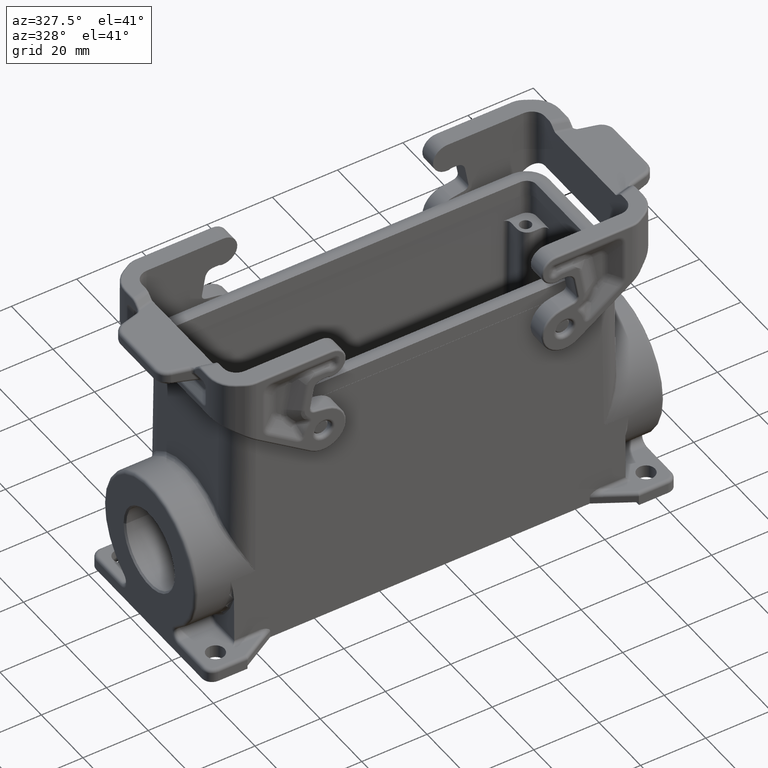
[diagram: clean part render]
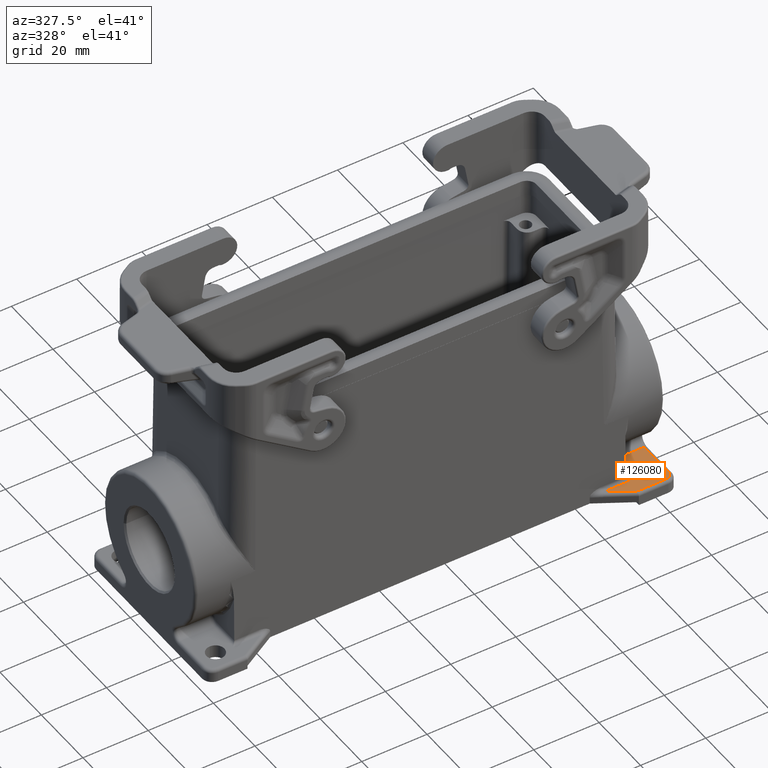
[diagram: same view with one face highlighted and labeled with its STEP entity id]
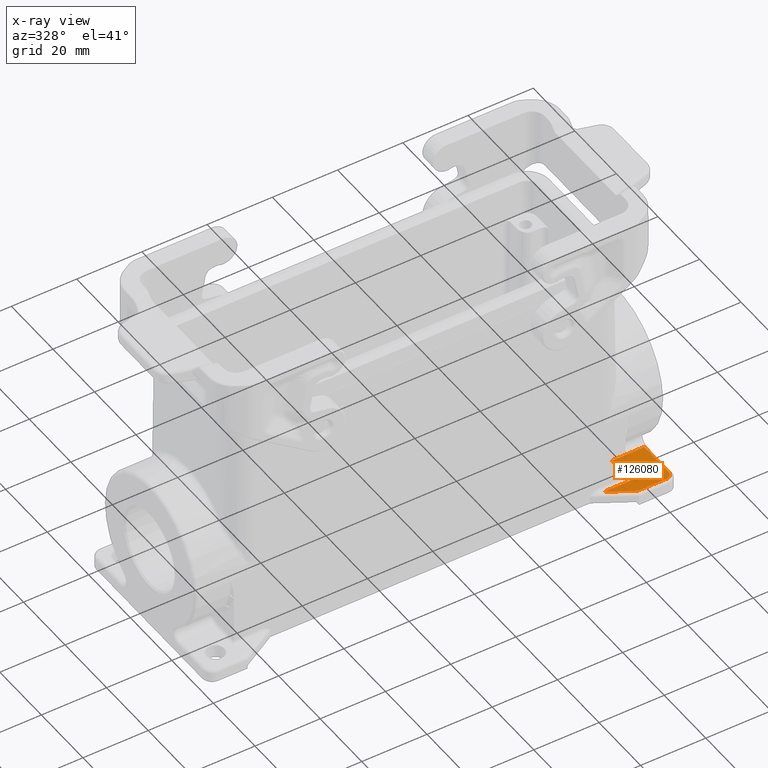
[diagram: x-ray of the same camera — body ghosted, the highlighted face saturated]
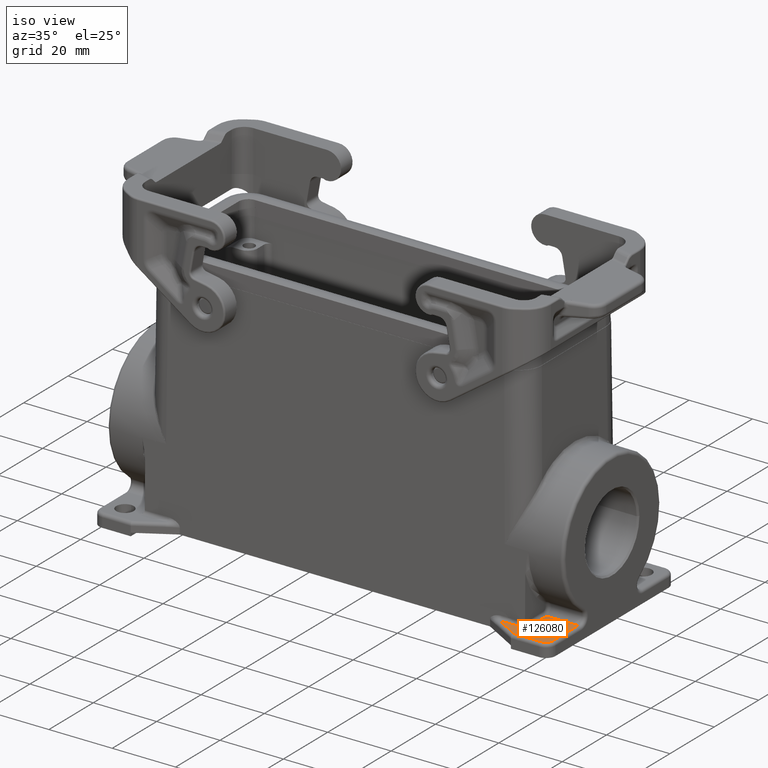
[diagram: same view with one face highlighted and labeled with its STEP entity id]
A machine part, auxiliary view. The second image highlights one B-rep face of the part: STEP entity #126080.
The next image is the same camera in x-ray: the body ghosted, the highlighted face saturated — about 0% of this face is hidden behind the body in this view.
A second angle (iso view) of the same face is appended — the face is thin or edge-on in the first view.
In plain terms, the highlighted planar face has unit normal (0, 0, -1).
Its self-contained STEP definition (entity closure, byte-faithful):
#32250=CARTESIAN_POINT('',(-8.68142200000004,67.70508,2.99999999999998))
;
#32260=VERTEX_POINT('',#32250);
#32290=CARTESIAN_POINT('',(-8.68142200000004,65.70508,2.99999999999998))
;
#32300=DIRECTION('',(0.,0.,1.));
#32310=DIRECTION('',(0.,-1.,1.22464679914735E-16));
#32320=AXIS2_PLACEMENT_3D('',#32290,#32300,#32310);
#32330=CIRCLE('',#32320,2.);
#32340=CARTESIAN_POINT('',(-10.681422,65.70508,2.99999999999998));
#32350=VERTEX_POINT('',#32340);
#32360=EDGE_CURVE('',#32260,#32350,#32330,.T.);
#42430=CARTESIAN_POINT('',(-10.681422,54.0852294588785,2.99999999999998)
);
#42440=VERTEX_POINT('',#42430);
#42490=CARTESIAN_POINT('',(-11.431422,54.0852294588785,2.99999999999998)
);
#42500=DIRECTION('',(-1.,0.,0.));
#42510=VECTOR('',#42500,1.);
#42520=LINE('',#42490,#42510);
#42530=CARTESIAN_POINT('',(-0.68142200000004,54.0852294588785,
2.99999999999998));
#42540=VERTEX_POINT('',#42530);
#42550=EDGE_CURVE('',#42540,#42440,#42520,.T.);
#124430=CARTESIAN_POINT('',(-0.68142200000004,63.3203622576342,
2.99999999999998));
#124440=VERTEX_POINT('',#124430);
#124470=CARTESIAN_POINT('',(120.637156,63.3203622576342,2.99999999999998
));
#124480=DIRECTION('',(1.,0.,0.));
#124490=VECTOR('',#124480,1.);
#124500=LINE('',#124470,#124490);
#124510=CARTESIAN_POINT('',(7.64518271419509,63.3203622576342,
2.99999999999998));
#124520=VERTEX_POINT('',#124510);
#124530=EDGE_CURVE('',#124440,#124520,#124500,.T.);
#125400=CARTESIAN_POINT('',(-0.68142200000004,4.89858719658938E-16,
2.99999999999998));
#125410=DIRECTION('',(0.,1.,0.));
#125420=VECTOR('',#125410,1.);
#125430=LINE('',#125400,#125420);
#125440=EDGE_CURVE('',#42540,#124440,#125430,.T.);
#125580=CARTESIAN_POINT('',(23.3685021747942,40.20508,2.99999999999998))
;
#125590=DIRECTION('',(0.,0.,-1.));
#125600=DIRECTION('',(1.,0.,0.));
#125610=AXIS2_PLACEMENT_3D('',#125580,#125590,#125600);
#125620=PLANE('',#125610);
#125630=CARTESIAN_POINT('',(-5.68142200000004,62.70508,2.99999999999998)
);
#125640=DIRECTION('',(0.,0.,-1.));
#125650=DIRECTION('',(0.,1.,0.));
#125660=AXIS2_PLACEMENT_3D('',#125630,#125640,#125650);
#125670=CIRCLE('',#125660,2.74999999999998);
#125680=CARTESIAN_POINT('',(-2.93142200000006,62.70508,2.99999999999998)
);
#125690=VERTEX_POINT('',#125680);
#125700=CARTESIAN_POINT('',(-8.43142200000002,62.70508,2.99999999999998)
);
#125710=VERTEX_POINT('',#125700);
#125720=EDGE_CURVE('',#125690,#125710,#125670,.T.);
#125730=ORIENTED_EDGE('',*,*,#125720,.T.);
#125740=CARTESIAN_POINT('',(-5.68142200000006,65.45508,2.99999999999998)
);
#125750=VERTEX_POINT('',#125740);
#125760=EDGE_CURVE('',#125750,#125690,#125670,.T.);
#125770=ORIENTED_EDGE('',*,*,#125760,.T.);
#125780=EDGE_CURVE('',#125710,#125750,#125670,.T.);
#125790=ORIENTED_EDGE('',*,*,#125780,.T.);
#125800=EDGE_LOOP('',(#125790,#125770,#125730));
#125810=FACE_BOUND('',#125800,.T.);
#125820=CARTESIAN_POINT('',(120.637156,67.70508,2.99999999999998));
#125830=DIRECTION('',(-1.,0.,0.));
#125840=VECTOR('',#125830,1.);
#125850=LINE('',#125820,#125840);
#125860=CARTESIAN_POINT('',(0.0506288075688275,67.70508,2.99999999999998
));
#125870=VERTEX_POINT('',#125860);
#125880=EDGE_CURVE('',#125870,#32260,#125850,.T.);
#125890=ORIENTED_EDGE('',*,*,#125880,.T.);
#125900=CARTESIAN_POINT('',(120.637156,-1.91558393519221,
2.99999999999998));
#125910=DIRECTION('',(-0.866025403784439,0.5,-5.72118872610981E-18));
#125920=VECTOR('',#125910,1.);
#125930=LINE('',#125900,#125920);
#125940=EDGE_CURVE('',#124520,#125870,#125930,.T.);
#125950=ORIENTED_EDGE('',*,*,#125940,.T.);
#125960=ORIENTED_EDGE('',*,*,#124530,.T.);
#125970=ORIENTED_EDGE('',*,*,#125440,.T.);
#125980=ORIENTED_EDGE('',*,*,#42550,.F.);
#125990=CARTESIAN_POINT('',(-10.681422,2.44929359829467E-16,
2.99999999999998));
#126000=DIRECTION('',(0.,1.,0.));
#126010=VECTOR('',#126000,1.);
#126020=LINE('',#125990,#126010);
#126030=EDGE_CURVE('',#42440,#32350,#126020,.T.);
#126040=ORIENTED_EDGE('',*,*,#126030,.F.);
#126050=ORIENTED_EDGE('',*,*,#32360,.T.);
#126060=EDGE_LOOP('',(#126050,#126040,#125980,#125970,#125960,#125950,
#125890));
#126070=FACE_OUTER_BOUND('',#126060,.T.);
#126080=ADVANCED_FACE('',(#125810,#126070),#125620,.F.);